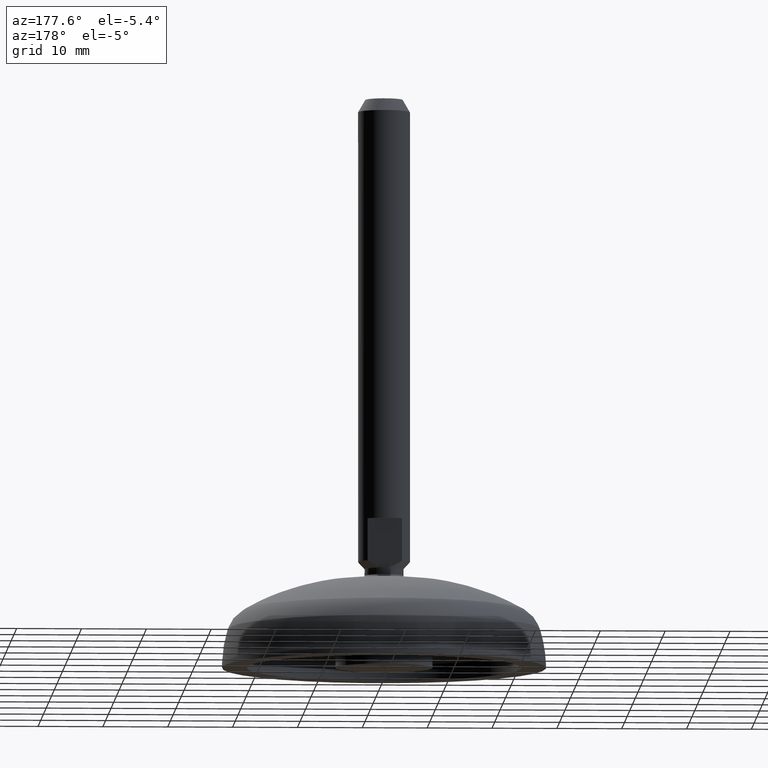
[diagram: clean part render]
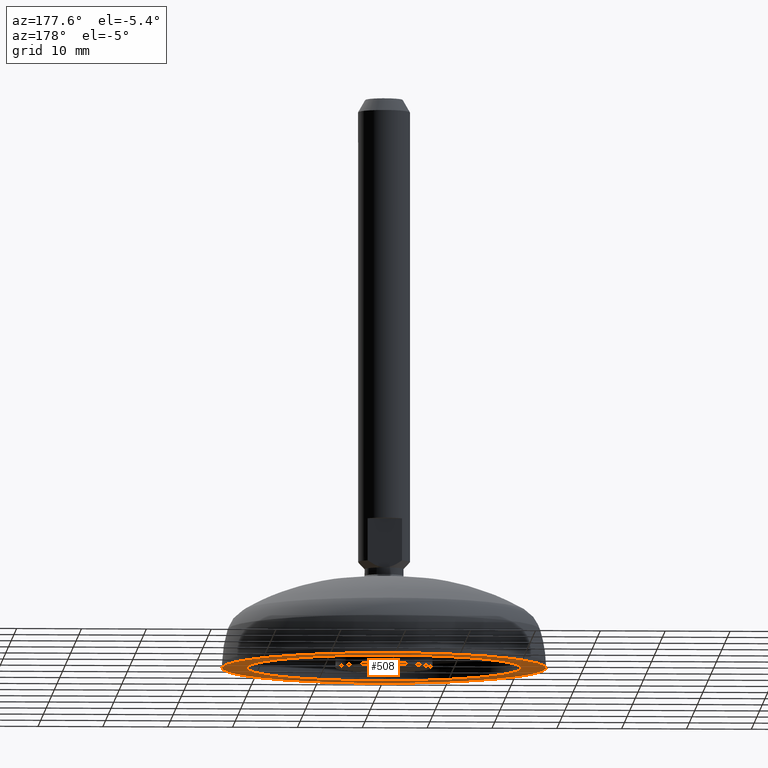
[diagram: same view with one face highlighted and labeled with its STEP entity id]
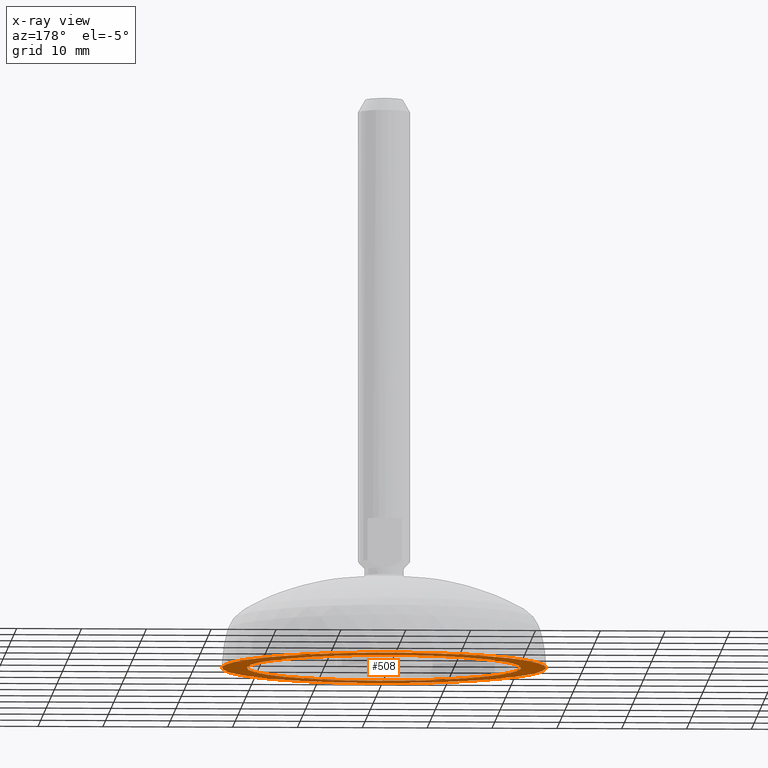
[diagram: x-ray of the same camera — body ghosted, the highlighted face saturated]
A machine part, auxiliary view. The second image highlights one B-rep face of the part: STEP entity #508.
The next image is the same camera in x-ray: the body ghosted, the highlighted face saturated — about 0% of this face is hidden behind the body in this view.
In plain terms, the highlighted planar face has unit normal (0, 0, 1).
Its self-contained STEP definition (entity closure, byte-faithful):
#449=CARTESIAN_POINT('',(-24.992364928690630,1.289336E-014,-1.188841E-012));
#450=VERTEX_POINT('',#449);
#457=CARTESIAN_POINT('',(24.992364928690648,1.289336E-014,-1.214828E-012));
#458=VERTEX_POINT('',#457);
#459=CARTESIAN_POINT('',(-1.567936E-025,1.289336E-014,-1.214828E-012));
#460=DIRECTION('',(0.0,0.0,-1.0));
#461=DIRECTION('',(-1.0,0.0,0.0));
#462=AXIS2_PLACEMENT_3D('',#459,#460,#461);
#463=CIRCLE('',#462,24.992364928690648);
#464=EDGE_CURVE('',#458,#450,#463,.T.);
#466=CARTESIAN_POINT('',(-1.567936E-025,1.289336E-014,-1.214828E-012));
#467=DIRECTION('',(0.0,0.0,-1.0));
#468=DIRECTION('',(-1.0,0.0,0.0));
#469=AXIS2_PLACEMENT_3D('',#466,#467,#468);
#470=CIRCLE('',#469,24.992364928690648);
#471=EDGE_CURVE('',#450,#458,#470,.T.);
#479=CARTESIAN_POINT('',(-27.491601421559714,-27.491601421559700,4.366685E-013));
#480=DIRECTION('',(0.0,0.0,1.0));
#481=DIRECTION('',(1.0,0.0,0.0));
#482=AXIS2_PLACEMENT_3D('',#479,#480,#481);
#483=PLANE('',#482);
#484=ORIENTED_EDGE('',*,*,#471,.T.);
#485=ORIENTED_EDGE('',*,*,#464,.T.);
#486=EDGE_LOOP('',(#484,#485));
#487=FACE_OUTER_BOUND('',#486,.T.);
#488=CARTESIAN_POINT('',(21.150118880478285,1.289336E-014,-1.137512E-012));
#489=VERTEX_POINT('',#488);
#490=CARTESIAN_POINT('',(-21.150118880478278,1.116660E-014,-1.137445E-012));
#491=VERTEX_POINT('',#490);
#492=CARTESIAN_POINT('',(-1.468147E-025,1.289336E-014,-1.137512E-012));
#493=DIRECTION('',(0.0,0.0,-1.0));
#494=DIRECTION('',(-1.0,0.0,0.0));
#495=AXIS2_PLACEMENT_3D('',#492,#493,#494);
#496=CIRCLE('',#495,21.150118880478285);
#497=EDGE_CURVE('',#489,#491,#496,.T.);
#498=ORIENTED_EDGE('',*,*,#497,.F.);
#499=CARTESIAN_POINT('',(-1.468147E-025,1.289336E-014,-1.137512E-012));
#500=DIRECTION('',(0.0,0.0,-1.0));
#501=DIRECTION('',(-1.0,0.0,0.0));
#502=AXIS2_PLACEMENT_3D('',#499,#500,#501);
#503=CIRCLE('',#502,21.150118880478285);
#504=EDGE_CURVE('',#491,#489,#503,.T.);
#505=ORIENTED_EDGE('',*,*,#504,.F.);
#506=EDGE_LOOP('',(#498,#505));
#507=FACE_BOUND('',#506,.T.);
#508=ADVANCED_FACE('',(#487,#507),#483,.F.);